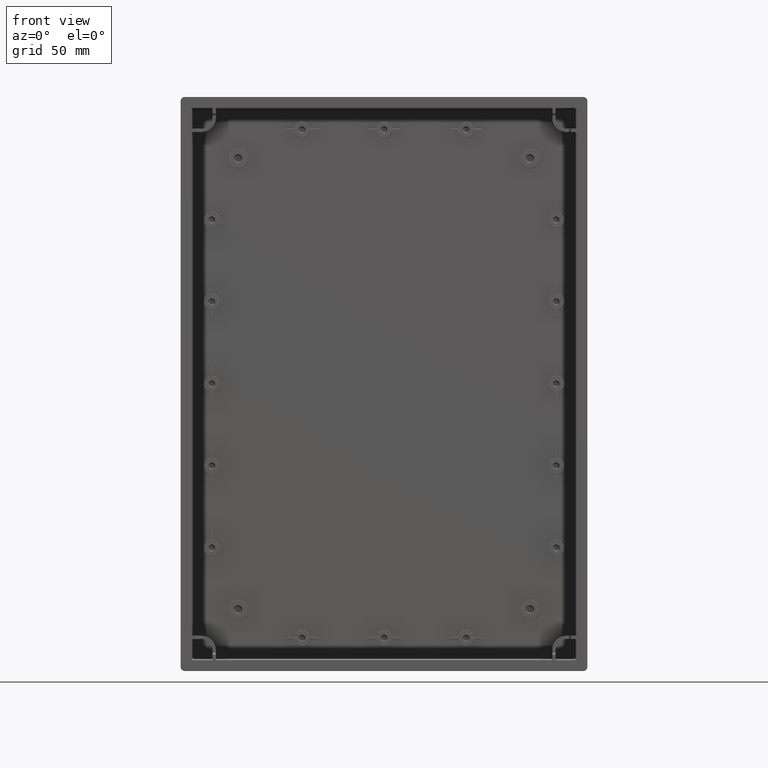
[diagram: clean part render]
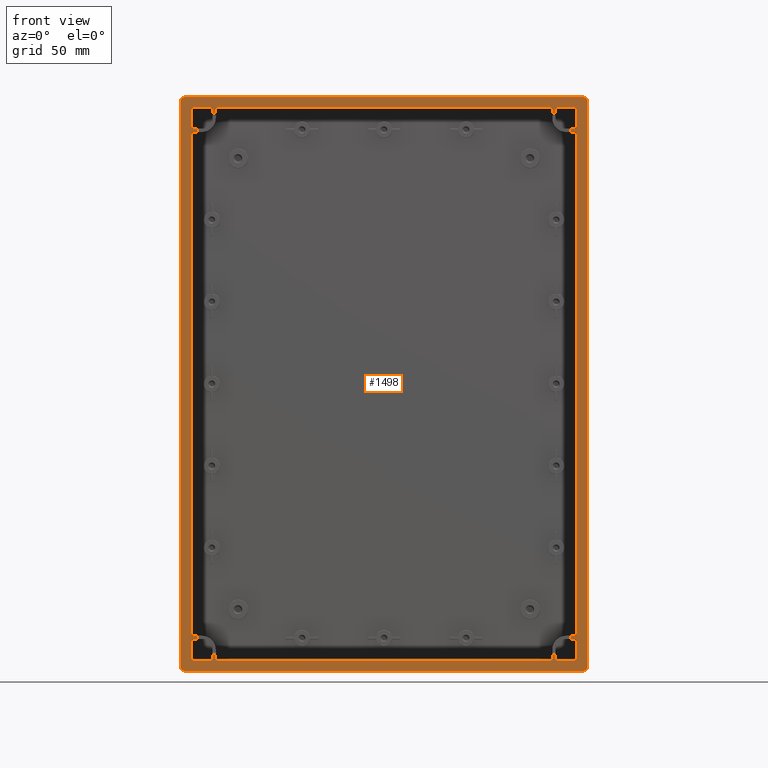
[diagram: same view with one face highlighted and labeled with its STEP entity id]
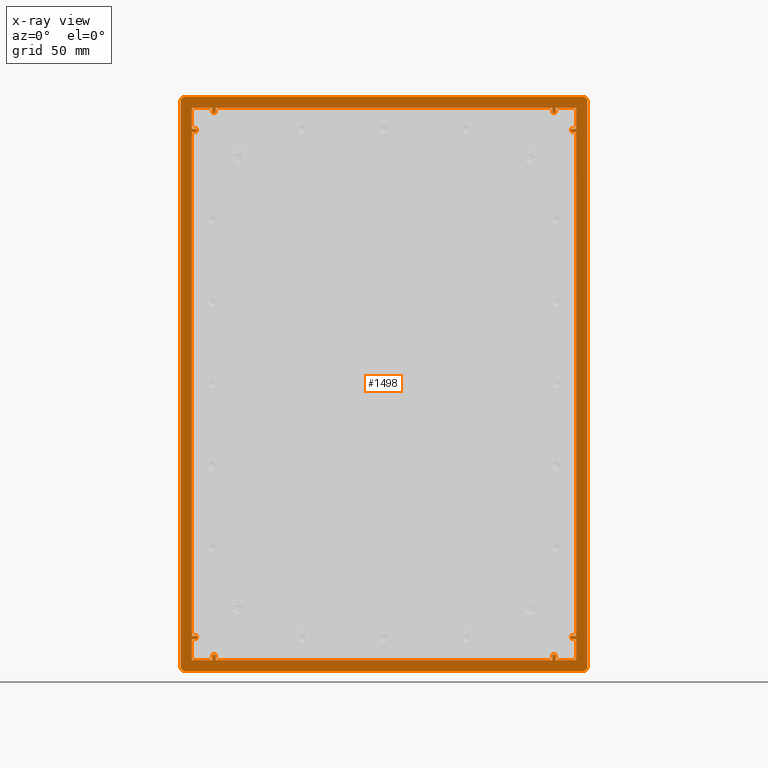
[diagram: x-ray of the same camera — body ghosted, the highlighted face saturated]
A machine part, front view. The second image highlights one B-rep face of the part: STEP entity #1498.
The next image is the same camera in x-ray: the body ghosted, the highlighted face saturated — about 0% of this face is hidden behind the body in this view.
In plain terms, the highlighted planar face has unit normal (-0, 1, 0).
Its self-contained STEP definition (entity closure, byte-faithful):
#1294 = EDGE_CURVE ( 'NONE', #5655, #5654, #6695, .T. ) ;
#1299 = EDGE_CURVE ( 'NONE', #5650, #5655, #6705, .T. ) ;
#1302 = EDGE_CURVE ( 'NONE', #5646, #5650, #6709, .T. ) ;
#1306 = EDGE_CURVE ( 'NONE', #5642, #5640, #6717, .T. ) ;
#1310 = EDGE_CURVE ( 'NONE', #5637, #5642, #6724, .T. ) ;
#1314 = EDGE_CURVE ( 'NONE', #5640, #5633, #6732, .T. ) ;
#1319 = EDGE_CURVE ( 'NONE', #5628, #5627, #6741, .T. ) ;
#1324 = EDGE_CURVE ( 'NONE', #5620, #5618, #6749, .T. ) ;
#1329 = EDGE_CURVE ( 'NONE', #5612, #5611, #6759, .T. ) ;
#1334 = EDGE_CURVE ( 'NONE', #5606, #5605, #6767, .T. ) ;
#1338 = EDGE_CURVE ( 'NONE', #5627, #5606, #6775, .T. ) ;
#1340 = EDGE_CURVE ( 'NONE', #5611, #5620, #6778, .T. ) ;
#1342 = EDGE_CURVE ( 'NONE', #5596, #5594, #6782, .T. ) ;
#1347 = EDGE_CURVE ( 'NONE', #5591, #5596, #6791, .T. ) ;
#1350 = EDGE_CURVE ( 'NONE', #5587, #5591, #6797, .T. ) ;
#1354 = EDGE_CURVE ( 'NONE', #5582, #5580, #6803, .T. ) ;
#1358 = EDGE_CURVE ( 'NONE', #5576, #5582, #6811, .T. ) ;
#1362 = EDGE_CURVE ( 'NONE', #5580, #5571, #6817, .T. ) ;
#1367 = EDGE_CURVE ( 'NONE', #5567, #5565, #6827, .T. ) ;
#1372 = EDGE_CURVE ( 'NONE', #5559, #5558, #6836, .T. ) ;
#1377 = EDGE_CURVE ( 'NONE', #5551, #5550, #6845, .T. ) ;
#1381 = EDGE_CURVE ( 'NONE', #5550, #5559, #6853, .T. ) ;
#1383 = EDGE_CURVE ( 'NONE', #5565, #5544, #6856, .T. ) ;
#1386 = EDGE_CURVE ( 'NONE', #5544, #5542, #6861, .T. ) ;
#1390 = EDGE_CURVE ( 'NONE', #5637, #5628, #6869, .T. ) ;
#1391 = EDGE_CURVE ( 'NONE', #5537, #5605, #6870, .T. ) ;
#1392 = EDGE_CURVE ( 'NONE', #5535, #5537, #18449, .T. ) ;
#1393 = EDGE_CURVE ( 'NONE', #5612, #5535, #6872, .T. ) ;
#1394 = EDGE_CURVE ( 'NONE', #5618, #5594, #6874, .T. ) ;
#1395 = EDGE_CURVE ( 'NONE', #5587, #5534, #6876, .T. ) ;
#1396 = EDGE_CURVE ( 'NONE', #5534, #5532, #18438, .T. ) ;
#1397 = EDGE_CURVE ( 'NONE', #5532, #5571, #6879, .T. ) ;
#1398 = EDGE_CURVE ( 'NONE', #5576, #5567, #6881, .T. ) ;
#1399 = EDGE_CURVE ( 'NONE', #5531, #5542, #6882, .T. ) ;
#1400 = EDGE_CURVE ( 'NONE', #5530, #5531, #18454, .T. ) ;
#1401 = EDGE_CURVE ( 'NONE', #5551, #5530, #6885, .T. ) ;
#1402 = EDGE_CURVE ( 'NONE', #5558, #5654, #6887, .T. ) ;
#1403 = EDGE_CURVE ( 'NONE', #5646, #5528, #6889, .T. ) ;
#1404 = EDGE_CURVE ( 'NONE', #5528, #5527, #18439, .T. ) ;
#1405 = EDGE_CURVE ( 'NONE', #5527, #5633, #6892, .T. ) ;
#1406 = EDGE_CURVE ( 'NONE', #5526, #5523, #6893, .T. ) ;
#1407 = EDGE_CURVE ( 'NONE', #5526, #5524, #18448, .T. ) ;
#1408 = EDGE_CURVE ( 'NONE', #5523, #5521, #18442, .T. ) ;
#1409 = EDGE_CURVE ( 'NONE', #5521, #5519, #6897, .T. ) ;
#1410 = EDGE_CURVE ( 'NONE', #5518, #5519, #18443, .T. ) ;
#1411 = EDGE_CURVE ( 'NONE', #5518, #5517, #6900, .T. ) ;
#1412 = EDGE_CURVE ( 'NONE', #5517, #5516, #18453, .T. ) ;
#1413 = EDGE_CURVE ( 'NONE', #5516, #5524, #6902, .T. ) ;
#1498 = ADVANCED_FACE ( 'NONE', ( #7038, #7040 ), #8974, .F. ) ;
#1738 = ORIENTED_EDGE ( 'NONE', *, *, #1294, .F. ) ;
#1739 = ORIENTED_EDGE ( 'NONE', *, *, #1302, .F. ) ;
#1740 = ORIENTED_EDGE ( 'NONE', *, *, #1402, .T. ) ;
#1741 = ORIENTED_EDGE ( 'NONE', *, *, #1386, .T. ) ;
#1742 = ORIENTED_EDGE ( 'NONE', *, *, #1400, .F. ) ;
#1743 = ORIENTED_EDGE ( 'NONE', *, *, #1398, .T. ) ;
#1744 = ORIENTED_EDGE ( 'NONE', *, *, #1367, .T. ) ;
#1745 = ORIENTED_EDGE ( 'NONE', *, *, #1372, .T. ) ;
#1746 = ORIENTED_EDGE ( 'NONE', *, *, #1377, .T. ) ;
#1747 = ORIENTED_EDGE ( 'NONE', *, *, #1381, .T. ) ;
#1763 = ORIENTED_EDGE ( 'NONE', *, *, #1350, .F. ) ;
#1764 = ORIENTED_EDGE ( 'NONE', *, *, #1383, .T. ) ;
#1765 = ORIENTED_EDGE ( 'NONE', *, *, #1347, .F. ) ;
#1766 = ORIENTED_EDGE ( 'NONE', *, *, #1362, .F. ) ;
#1767 = ORIENTED_EDGE ( 'NONE', *, *, #1404, .T. ) ;
#1770 = ORIENTED_EDGE ( 'NONE', *, *, #1392, .F. ) ;
#1772 = ORIENTED_EDGE ( 'NONE', *, *, #1393, .F. ) ;
#1776 = ORIENTED_EDGE ( 'NONE', *, *, #1306, .F. ) ;
#1779 = ORIENTED_EDGE ( 'NONE', *, *, #1403, .T. ) ;
#1780 = ORIENTED_EDGE ( 'NONE', *, *, #1399, .F. ) ;
#1781 = ORIENTED_EDGE ( 'NONE', *, *, #1401, .F. ) ;
#1782 = ORIENTED_EDGE ( 'NONE', *, *, #1358, .F. ) ;
#1784 = ORIENTED_EDGE ( 'NONE', *, *, #1329, .T. ) ;
#1785 = ORIENTED_EDGE ( 'NONE', *, *, #1390, .T. ) ;
#1790 = ORIENTED_EDGE ( 'NONE', *, *, #1405, .T. ) ;
#1791 = ORIENTED_EDGE ( 'NONE', *, *, #1342, .F. ) ;
#1792 = ORIENTED_EDGE ( 'NONE', *, *, #1354, .F. ) ;
#1793 = ORIENTED_EDGE ( 'NONE', *, *, #1338, .T. ) ;
#1796 = ORIENTED_EDGE ( 'NONE', *, *, #1310, .F. ) ;
#1800 = ORIENTED_EDGE ( 'NONE', *, *, #1299, .F. ) ;
#1801 = ORIENTED_EDGE ( 'NONE', *, *, #1412, .T. ) ;
#1802 = ORIENTED_EDGE ( 'NONE', *, *, #1314, .F. ) ;
#1803 = ORIENTED_EDGE ( 'NONE', *, *, #1406, .T. ) ;
#1804 = ORIENTED_EDGE ( 'NONE', *, *, #1391, .F. ) ;
#1805 = ORIENTED_EDGE ( 'NONE', *, *, #1334, .T. ) ;
#1834 = ORIENTED_EDGE ( 'NONE', *, *, #1407, .F. ) ;
#1836 = ORIENTED_EDGE ( 'NONE', *, *, #1410, .F. ) ;
#1841 = ORIENTED_EDGE ( 'NONE', *, *, #1409, .T. ) ;
#1842 = ORIENTED_EDGE ( 'NONE', *, *, #1411, .T. ) ;
#1843 = ORIENTED_EDGE ( 'NONE', *, *, #1408, .T. ) ;
#1848 = ORIENTED_EDGE ( 'NONE', *, *, #1395, .T. ) ;
#1849 = ORIENTED_EDGE ( 'NONE', *, *, #1396, .T. ) ;
#1850 = ORIENTED_EDGE ( 'NONE', *, *, #1397, .T. ) ;
#1853 = ORIENTED_EDGE ( 'NONE', *, *, #1394, .T. ) ;
#1854 = ORIENTED_EDGE ( 'NONE', *, *, #1340, .T. ) ;
#1856 = ORIENTED_EDGE ( 'NONE', *, *, #1319, .T. ) ;
#1857 = ORIENTED_EDGE ( 'NONE', *, *, #1324, .T. ) ;
#1868 = ORIENTED_EDGE ( 'NONE', *, *, #1413, .T. ) ;
#5458 = VECTOR ( 'NONE', #8099, 1000.000000000000000 ) ;
#5516 = VERTEX_POINT ( 'NONE', #17387 ) ;
#5517 = VERTEX_POINT ( 'NONE', #17388 ) ;
#5518 = VERTEX_POINT ( 'NONE', #17389 ) ;
#5519 = VERTEX_POINT ( 'NONE', #17390 ) ;
#5521 = VERTEX_POINT ( 'NONE', #17391 ) ;
#5523 = VERTEX_POINT ( 'NONE', #17392 ) ;
#5522 = VECTOR ( 'NONE', #8091, 1000.000000000000000 ) ;
#5524 = VERTEX_POINT ( 'NONE', #17393 ) ;
#5526 = VERTEX_POINT ( 'NONE', #17394 ) ;
#5527 = VERTEX_POINT ( 'NONE', #17395 ) ;
#5528 = VERTEX_POINT ( 'NONE', #17396 ) ;
#5530 = VERTEX_POINT ( 'NONE', #17397 ) ;
#5531 = VERTEX_POINT ( 'NONE', #17398 ) ;
#5532 = VERTEX_POINT ( 'NONE', #17399 ) ;
#5534 = VERTEX_POINT ( 'NONE', #17400 ) ;
#5535 = VERTEX_POINT ( 'NONE', #17401 ) ;
#5537 = VERTEX_POINT ( 'NONE', #17402 ) ;
#5542 = VERTEX_POINT ( 'NONE', #17405 ) ;
#5544 = VERTEX_POINT ( 'NONE', #17407 ) ;
#5550 = VERTEX_POINT ( 'NONE', #17411 ) ;
#5551 = VERTEX_POINT ( 'NONE', #17412 ) ;
#5558 = VERTEX_POINT ( 'NONE', #17416 ) ;
#5557 = VECTOR ( 'NONE', #8364, 1000.000000000000000 ) ;
#5559 = VERTEX_POINT ( 'NONE', #17417 ) ;
#5565 = VERTEX_POINT ( 'NONE', #17421 ) ;
#5566 = VECTOR ( 'NONE', #8356, 1000.000000000000000 ) ;
#5567 = VERTEX_POINT ( 'NONE', #17422 ) ;
#5571 = VERTEX_POINT ( 'NONE', #17425 ) ;
#5573 = VECTOR ( 'NONE', #8349, 1000.000000000000000 ) ;
#5576 = VERTEX_POINT ( 'NONE', #17428 ) ;
#5580 = VERTEX_POINT ( 'NONE', #17431 ) ;
#5582 = VERTEX_POINT ( 'NONE', #17433 ) ;
#5583 = VECTOR ( 'NONE', #8334, 1000.000000000000000 ) ;
#5587 = VERTEX_POINT ( 'NONE', #17436 ) ;
#5588 = VECTOR ( 'NONE', #8332, 1000.000000000000000 ) ;
#5591 = VERTEX_POINT ( 'NONE', #17438 ) ;
#5594 = VERTEX_POINT ( 'NONE', #17441 ) ;
#5596 = VERTEX_POINT ( 'NONE', #17442 ) ;
#5597 = VECTOR ( 'NONE', #8323, 1000.000000000000000 ) ;
#5602 = VECTOR ( 'NONE', #8321, 1000.000000000000000 ) ;
#5605 = VERTEX_POINT ( 'NONE', #17447 ) ;
#5606 = VERTEX_POINT ( 'NONE', #17448 ) ;
#5609 = VECTOR ( 'NONE', #8318, 1000.000000000000000 ) ;
#5611 = VERTEX_POINT ( 'NONE', #17452 ) ;
#5612 = VERTEX_POINT ( 'NONE', #17453 ) ;
#5618 = VERTEX_POINT ( 'NONE', #17457 ) ;
#5619 = VECTOR ( 'NONE', #8309, 1000.000000000000000 ) ;
#5620 = VERTEX_POINT ( 'NONE', #17458 ) ;
#5624 = VECTOR ( 'NONE', #8307, 1000.000000000000000 ) ;
#5627 = VERTEX_POINT ( 'NONE', #17462 ) ;
#5628 = VERTEX_POINT ( 'NONE', #17463 ) ;
#5629 = VECTOR ( 'NONE', #8304, 1000.000000000000000 ) ;
#5633 = VERTEX_POINT ( 'NONE', #17466 ) ;
#5637 = VERTEX_POINT ( 'NONE', #17469 ) ;
#5638 = VECTOR ( 'NONE', #8296, 1000.000000000000000 ) ;
#5640 = VERTEX_POINT ( 'NONE', #17471 ) ;
#5642 = VERTEX_POINT ( 'NONE', #17473 ) ;
#5643 = VECTOR ( 'NONE', #8293, 1000.000000000000000 ) ;
#5646 = VERTEX_POINT ( 'NONE', #17476 ) ;
#5647 = VECTOR ( 'NONE', #8290, 1000.000000000000000 ) ;
#5650 = VERTEX_POINT ( 'NONE', #17478 ) ;
#5652 = VECTOR ( 'NONE', #8085, 1000.000000000000000 ) ;
#5654 = VERTEX_POINT ( 'NONE', #17481 ) ;
#5655 = VERTEX_POINT ( 'NONE', #17482 ) ;
#5656 = VECTOR ( 'NONE', #8283, 1000.000000000000000 ) ;
#5661 = VECTOR ( 'NONE', #8280, 1000.000000000000000 ) ;
#5683 = VECTOR ( 'NONE', #8268, 1000.000000000000000 ) ;
#5697 = VECTOR ( 'NONE', #8260, 1000.000000000000000 ) ;
#5708 = VECTOR ( 'NONE', #8254, 1000.000000000000000 ) ;
#5729 = VECTOR ( 'NONE', #8243, 1000.000000000000000 ) ;
#5755 = VECTOR ( 'NONE', #8231, 1000.000000000000000 ) ;
#5781 = VECTOR ( 'NONE', #8221, 1000.000000000000000 ) ;
#5808 = VECTOR ( 'NONE', #8211, 1000.000000000000000 ) ;
#5826 = VECTOR ( 'NONE', #8203, 1000.000000000000000 ) ;
#5848 = VECTOR ( 'NONE', #8195, 1000.000000000000000 ) ;
#5867 = VECTOR ( 'NONE', #8187, 1000.000000000000000 ) ;
#5884 = VECTOR ( 'NONE', #8181, 1000.000000000000000 ) ;
#5909 = VECTOR ( 'NONE', #8171, 1000.000000000000000 ) ;
#5920 = VECTOR ( 'NONE', #8167, 1000.000000000000000 ) ;
#5930 = VECTOR ( 'NONE', #8163, 1000.000000000000000 ) ;
#5955 = VECTOR ( 'NONE', #8155, 1000.000000000000000 ) ;
#5990 = VECTOR ( 'NONE', #8145, 1000.000000000000000 ) ;
#6025 = VECTOR ( 'NONE', #8135, 1000.000000000000000 ) ;
#6056 = VECTOR ( 'NONE', #8075, 1000.000000000000000 ) ;
#6059 = VECTOR ( 'NONE', #8125, 1000.000000000000000 ) ;
#6064 = EDGE_LOOP ( 'NONE', ( #1785, #1856, #1793, #1805, #1804, #1770, #1772, #1784, #1854, #1857, #1853, #1791, #1765, #1763, #1848, #1849, #1850, #1766, #1792, #1782, #1743, #1744, #1764, #1741, #1780, #1742, #1781, #1746, #1747, #1745, #1740, #1738, #1800, #1739, #1779, #1767, #1790, #1802, #1776, #1796 ) ) ;
#6067 = EDGE_LOOP ( 'NONE', ( #1834, #1803, #1843, #1841, #1836, #1842, #1801, #1868 ) ) ;
#6090 = VECTOR ( 'NONE', #8115, 1000.000000000000000 ) ;
#6118 = VECTOR ( 'NONE', #8107, 1000.000000000000000 ) ;
#6695 = LINE ( 'NONE', #8074, #6056 ) ;
#6705 = LINE ( 'NONE', #8084, #5652 ) ;
#6709 = LINE ( 'NONE', #8090, #5522 ) ;
#6717 = LINE ( 'NONE', #8098, #5458 ) ;
#6724 = LINE ( 'NONE', #8106, #6118 ) ;
#6732 = LINE ( 'NONE', #8114, #6090 ) ;
#6741 = LINE ( 'NONE', #8124, #6059 ) ;
#6749 = LINE ( 'NONE', #8134, #6025 ) ;
#6759 = LINE ( 'NONE', #8144, #5990 ) ;
#6767 = LINE ( 'NONE', #8154, #5955 ) ;
#6775 = LINE ( 'NONE', #8162, #5930 ) ;
#6778 = LINE ( 'NONE', #8166, #5920 ) ;
#6782 = LINE ( 'NONE', #8170, #5909 ) ;
#6791 = LINE ( 'NONE', #8180, #5884 ) ;
#6797 = LINE ( 'NONE', #8186, #5867 ) ;
#6803 = LINE ( 'NONE', #8194, #5848 ) ;
#6811 = LINE ( 'NONE', #8202, #5826 ) ;
#6817 = LINE ( 'NONE', #8210, #5808 ) ;
#6827 = LINE ( 'NONE', #8220, #5781 ) ;
#6836 = LINE ( 'NONE', #8230, #5755 ) ;
#6845 = LINE ( 'NONE', #8242, #5729 ) ;
#6853 = LINE ( 'NONE', #8253, #5708 ) ;
#6856 = LINE ( 'NONE', #8259, #5697 ) ;
#6861 = LINE ( 'NONE', #8267, #5683 ) ;
#6869 = LINE ( 'NONE', #8278, #5661 ) ;
#6870 = LINE ( 'NONE', #8282, #5656 ) ;
#6872 = LINE ( 'NONE', #8289, #5647 ) ;
#6874 = LINE ( 'NONE', #8292, #5643 ) ;
#6876 = LINE ( 'NONE', #8295, #5638 ) ;
#6879 = LINE ( 'NONE', #8303, #5629 ) ;
#6881 = LINE ( 'NONE', #8305, #5624 ) ;
#6882 = LINE ( 'NONE', #8308, #5619 ) ;
#6885 = LINE ( 'NONE', #8317, #5609 ) ;
#6887 = LINE ( 'NONE', #8320, #5602 ) ;
#6889 = LINE ( 'NONE', #8322, #5597 ) ;
#6892 = LINE ( 'NONE', #8331, #5588 ) ;
#6893 = LINE ( 'NONE', #8333, #5583 ) ;
#6897 = LINE ( 'NONE', #8348, #5573 ) ;
#6900 = LINE ( 'NONE', #8355, #5566 ) ;
#6902 = LINE ( 'NONE', #8363, #5557 ) ;
#7038 = FACE_BOUND ( 'NONE', #6064, .T. ) ;
#7040 = FACE_OUTER_BOUND ( 'NONE', #6067, .T. ) ;
#8074 = CARTESIAN_POINT ( 'NONE',  ( 117.3998857648000000, 0.0000000000000000000, -153.5743235324999900 ) ) ;
#8075 = DIRECTION ( 'NONE',  ( 1.000000000000000000, 0.0000000000000000000, -0.0000000000000000000 ) ) ;
#8084 = CARTESIAN_POINT ( 'NONE',  ( 114.0082981287155900, 0.0000000000000000000, -154.5743235324999900 ) ) ;
#8085 = DIRECTION ( 'NONE',  ( 0.0000000000000000000, 0.0000000000000000000, 1.000000000000000000 ) ) ;
#8090 = CARTESIAN_POINT ( 'NONE',  ( 104.5743235325000000, 0.0000000000000000000, -155.5743235324999900 ) ) ;
#8091 = DIRECTION ( 'NONE',  ( -1.000000000000000000, 0.0000000000000000000, 0.0000000000000000000 ) ) ;
#8098 = CARTESIAN_POINT ( 'NONE',  ( 103.5743235325000000, 0.0000000000000000000, -165.0082981287155800 ) ) ;
#8099 = DIRECTION ( 'NONE',  ( 1.000000000000000000, 0.0000000000000000000, 0.0000000000000000000 ) ) ;
#8106 = CARTESIAN_POINT ( 'NONE',  ( 102.5743235325000200, 0.0000000000000000000, -153.5743235324999900 ) ) ;
#8107 = DIRECTION ( 'NONE',  ( 0.0000000000000000000, 0.0000000000000000000, 1.000000000000000000 ) ) ;
#8114 = CARTESIAN_POINT ( 'NONE',  ( 104.5743235325000000, 0.0000000000000000000, -168.3998857647999900 ) ) ;
#8115 = DIRECTION ( 'NONE',  ( 0.0000000000000000000, 0.0000000000000000000, -1.000000000000000000 ) ) ;
#8124 = CARTESIAN_POINT ( 'NONE',  ( -102.5743235325000200, 0.0000000000000000000, -153.5743235324999900 ) ) ;
#8125 = DIRECTION ( 'NONE',  ( 0.0000000000000000000, 0.0000000000000000000, 1.000000000000000000 ) ) ;
#8134 = CARTESIAN_POINT ( 'NONE',  ( -117.3998857648000000, 0.0000000000000000000, -153.5743235324999900 ) ) ;
#8135 = DIRECTION ( 'NONE',  ( -1.000000000000000000, 0.0000000000000000000, 0.0000000000000000000 ) ) ;
#8144 = CARTESIAN_POINT ( 'NONE',  ( -104.5743235325000000, 0.0000000000000000000, -155.5743235324999900 ) ) ;
#8145 = DIRECTION ( 'NONE',  ( 1.000000000000000000, 0.0000000000000000000, -0.0000000000000000000 ) ) ;
#8154 = CARTESIAN_POINT ( 'NONE',  ( -104.5743235325000000, 0.0000000000000000000, -168.3998857647999900 ) ) ;
#8155 = DIRECTION ( 'NONE',  ( 0.0000000000000000000, 0.0000000000000000000, -1.000000000000000000 ) ) ;
#8162 = CARTESIAN_POINT ( 'NONE',  ( -103.5743235325000000, 0.0000000000000000000, -165.0082981287155800 ) ) ;
#8163 = DIRECTION ( 'NONE',  ( -1.000000000000000000, 0.0000000000000000000, 0.0000000000000000000 ) ) ;
#8166 = CARTESIAN_POINT ( 'NONE',  ( -114.0082981287155900, 0.0000000000000000000, -154.5743235324999900 ) ) ;
#8167 = DIRECTION ( 'NONE',  ( 0.0000000000000000000, 0.0000000000000000000, 1.000000000000000000 ) ) ;
#8170 = CARTESIAN_POINT ( 'NONE',  ( -117.3998857648000000, 0.0000000000000000000, 153.5743235324999900 ) ) ;
#8171 = DIRECTION ( 'NONE',  ( -1.000000000000000000, 0.0000000000000000000, 0.0000000000000000000 ) ) ;
#8180 = CARTESIAN_POINT ( 'NONE',  ( -114.0082981287155900, 0.0000000000000000000, 154.5743235324999900 ) ) ;
#8181 = DIRECTION ( 'NONE',  ( 0.0000000000000000000, 0.0000000000000000000, -1.000000000000000000 ) ) ;
#8186 = CARTESIAN_POINT ( 'NONE',  ( -104.5743235325000000, 0.0000000000000000000, 155.5743235324999900 ) ) ;
#8187 = DIRECTION ( 'NONE',  ( 1.000000000000000000, 0.0000000000000000000, -0.0000000000000000000 ) ) ;
#8194 = CARTESIAN_POINT ( 'NONE',  ( -103.5743235325000000, 0.0000000000000000000, 165.0082981287155800 ) ) ;
#8195 = DIRECTION ( 'NONE',  ( -1.000000000000000000, 0.0000000000000000000, 0.0000000000000000000 ) ) ;
#8202 = CARTESIAN_POINT ( 'NONE',  ( -102.5743235325000200, 0.0000000000000000000, 153.5743235324999900 ) ) ;
#8203 = DIRECTION ( 'NONE',  ( 0.0000000000000000000, 0.0000000000000000000, -1.000000000000000000 ) ) ;
#8210 = CARTESIAN_POINT ( 'NONE',  ( -104.5743235325000000, 0.0000000000000000000, 168.3998857647999900 ) ) ;
#8211 = DIRECTION ( 'NONE',  ( 0.0000000000000000000, 0.0000000000000000000, 1.000000000000000000 ) ) ;
#8220 = CARTESIAN_POINT ( 'NONE',  ( 102.5743235325000200, 0.0000000000000000000, 153.5743235324999900 ) ) ;
#8221 = DIRECTION ( 'NONE',  ( 0.0000000000000000000, 0.0000000000000000000, -1.000000000000000000 ) ) ;
#8230 = CARTESIAN_POINT ( 'NONE',  ( 117.3998857648000000, 0.0000000000000000000, 153.5743235324999900 ) ) ;
#8231 = DIRECTION ( 'NONE',  ( 1.000000000000000000, 0.0000000000000000000, -0.0000000000000000000 ) ) ;
#8242 = CARTESIAN_POINT ( 'NONE',  ( 104.5743235325000000, 0.0000000000000000000, 155.5743235324999900 ) ) ;
#8243 = DIRECTION ( 'NONE',  ( -1.000000000000000000, 0.0000000000000000000, 0.0000000000000000000 ) ) ;
#8253 = CARTESIAN_POINT ( 'NONE',  ( 114.0082981287155900, 0.0000000000000000000, 154.5743235324999900 ) ) ;
#8254 = DIRECTION ( 'NONE',  ( 0.0000000000000000000, 0.0000000000000000000, -1.000000000000000000 ) ) ;
#8259 = CARTESIAN_POINT ( 'NONE',  ( 103.5743235325000000, 0.0000000000000000000, 165.0082981287155800 ) ) ;
#8260 = DIRECTION ( 'NONE',  ( 1.000000000000000000, 0.0000000000000000000, -0.0000000000000000000 ) ) ;
#8267 = CARTESIAN_POINT ( 'NONE',  ( 104.5743235325000000, 0.0000000000000000000, 168.3998857647999900 ) ) ;
#8268 = DIRECTION ( 'NONE',  ( 0.0000000000000000000, 0.0000000000000000000, 1.000000000000000000 ) ) ;
#8278 = CARTESIAN_POINT ( 'NONE',  ( 102.5743235325000200, 0.0000000000000000000, -168.3998857647999900 ) ) ;
#8280 = DIRECTION ( 'NONE',  ( -1.000000000000000000, 0.0000000000000000000, 0.0000000000000000000 ) ) ;
#8282 = CARTESIAN_POINT ( 'NONE',  ( -116.3999238418000000, -1.894780628693999900E-014, -168.3998857647999900 ) ) ;
#8283 = DIRECTION ( 'NONE',  ( 1.000000000000000000, 0.0000000000000000000, 0.0000000000000000000 ) ) ;
#8284 = CARTESIAN_POINT ( 'NONE',  ( -117.3998857648070400, 0.0000000000000000000, -167.3999238417747200 ) ) ;
#8285 = CARTESIAN_POINT ( 'NONE',  ( -117.3998857647694600, 0.0000000000000000000, -167.9856972125168400 ) ) ;
#8286 = CARTESIAN_POINT ( 'NONE',  ( -116.9856972125076300, 0.0000000000000000000, -168.3998857647747800 ) ) ;
#8288 = CARTESIAN_POINT ( 'NONE',  ( -116.3999238417655100, -9.473903143469999300E-015, -168.3998857647974900 ) ) ;
#8289 = CARTESIAN_POINT ( 'NONE',  ( -117.3998857648000000, 0.0000000000000000000, -155.5743235324999900 ) ) ;
#8290 = DIRECTION ( 'NONE',  ( 0.0000000000000000000, 0.0000000000000000000, -1.000000000000000000 ) ) ;
#8292 = CARTESIAN_POINT ( 'NONE',  ( -117.3998857648000000, 0.0000000000000000000, -153.5743235324999900 ) ) ;
#8293 = DIRECTION ( 'NONE',  ( 0.0000000000000000000, 0.0000000000000000000, 1.000000000000000000 ) ) ;
#8295 = CARTESIAN_POINT ( 'NONE',  ( -117.3998857648000000, 0.0000000000000000000, 155.5743235324999900 ) ) ;
#8296 = DIRECTION ( 'NONE',  ( 0.0000000000000000000, 0.0000000000000000000, 1.000000000000000000 ) ) ;
#8298 = CARTESIAN_POINT ( 'NONE',  ( -117.3998857648070400, 0.0000000000000000000, 167.3999238417747200 ) ) ;
#8299 = CARTESIAN_POINT ( 'NONE',  ( -117.3998857647694600, 0.0000000000000000000, 167.9856972125168400 ) ) ;
#8300 = CARTESIAN_POINT ( 'NONE',  ( -116.9856972125076300, 0.0000000000000000000, 168.3998857647747800 ) ) ;
#8301 = CARTESIAN_POINT ( 'NONE',  ( -116.3999238417655100, 0.0000000000000000000, 168.3998857647974900 ) ) ;
#8303 = CARTESIAN_POINT ( 'NONE',  ( -116.3999238418000000, 0.0000000000000000000, 168.3998857647999900 ) ) ;
#8304 = DIRECTION ( 'NONE',  ( 1.000000000000000000, 0.0000000000000000000, 0.0000000000000000000 ) ) ;
#8305 = CARTESIAN_POINT ( 'NONE',  ( -102.5743235325000200, 0.0000000000000000000, 168.3998857647999900 ) ) ;
#8307 = DIRECTION ( 'NONE',  ( 1.000000000000000000, 0.0000000000000000000, 0.0000000000000000000 ) ) ;
#8308 = CARTESIAN_POINT ( 'NONE',  ( 116.3999238418000000, -1.894780628693999900E-014, 168.3998857647999900 ) ) ;
#8309 = DIRECTION ( 'NONE',  ( -1.000000000000000000, 0.0000000000000000000, 0.0000000000000000000 ) ) ;
#8310 = CARTESIAN_POINT ( 'NONE',  ( 117.3998857648070400, 0.0000000000000000000, 167.3999238417747200 ) ) ;
#8311 = CARTESIAN_POINT ( 'NONE',  ( 117.3998857647694600, 0.0000000000000000000, 167.9856972125168400 ) ) ;
#8313 = CARTESIAN_POINT ( 'NONE',  ( 116.9856972125076300, 0.0000000000000000000, 168.3998857647747800 ) ) ;
#8314 = CARTESIAN_POINT ( 'NONE',  ( 116.3999238417655100, -9.473903143469999300E-015, 168.3998857647974900 ) ) ;
#8317 = CARTESIAN_POINT ( 'NONE',  ( 117.3998857648000000, 0.0000000000000000000, 155.5743235324999900 ) ) ;
#8318 = DIRECTION ( 'NONE',  ( 0.0000000000000000000, 0.0000000000000000000, 1.000000000000000000 ) ) ;
#8320 = CARTESIAN_POINT ( 'NONE',  ( 117.3998857648000000, 0.0000000000000000000, 153.5743235324999900 ) ) ;
#8321 = DIRECTION ( 'NONE',  ( 0.0000000000000000000, 0.0000000000000000000, -1.000000000000000000 ) ) ;
#8322 = CARTESIAN_POINT ( 'NONE',  ( 117.3998857648000000, 0.0000000000000000000, -155.5743235324999900 ) ) ;
#8323 = DIRECTION ( 'NONE',  ( 0.0000000000000000000, 0.0000000000000000000, -1.000000000000000000 ) ) ;
#8325 = CARTESIAN_POINT ( 'NONE',  ( 117.3998857648070400, 0.0000000000000000000, -167.3999238417747200 ) ) ;
#8326 = CARTESIAN_POINT ( 'NONE',  ( 117.3998857647694600, 0.0000000000000000000, -167.9856972125168400 ) ) ;
#8328 = CARTESIAN_POINT ( 'NONE',  ( 116.9856972125076300, 0.0000000000000000000, -168.3998857647747800 ) ) ;
#8329 = CARTESIAN_POINT ( 'NONE',  ( 116.3999238417655100, -9.473903143469999300E-015, -168.3998857647974900 ) ) ;
#8331 = CARTESIAN_POINT ( 'NONE',  ( 116.3999238418000000, -1.894780628693999900E-014, -168.3998857647999900 ) ) ;
#8332 = DIRECTION ( 'NONE',  ( -1.000000000000000000, 0.0000000000000000000, 0.0000000000000000000 ) ) ;
#8333 = CARTESIAN_POINT ( 'NONE',  ( 121.5003807620999900, 1.907845811931000100E-014, 175.0000000000000300 ) ) ;
#8334 = DIRECTION ( 'NONE',  ( -1.000000000000000000, 0.0000000000000000000, 0.0000000000000000000 ) ) ;
#8336 = CARTESIAN_POINT ( 'NONE',  ( 121.5003807621190800, 0.0000000000000000000, 175.0000000000145800 ) ) ;
#8337 = CARTESIAN_POINT ( 'NONE',  ( 122.9647161629437400, 0.0000000000000000000, 175.0000000000670500 ) ) ;
#8338 = CARTESIAN_POINT ( 'NONE',  ( 124.0000000000670600, 0.0000000000000000000, 173.9647161629437700 ) ) ;
#8339 = CARTESIAN_POINT ( 'NONE',  ( 124.0000000000145700, 0.0000000000000000000, 172.5003807621191100 ) ) ;
#8342 = CARTESIAN_POINT ( 'NONE',  ( -121.5003807621190800, 0.0000000000000000000, 175.0000000000145800 ) ) ;
#8343 = CARTESIAN_POINT ( 'NONE',  ( -122.9647161629437400, 0.0000000000000000000, 175.0000000000670500 ) ) ;
#8344 = CARTESIAN_POINT ( 'NONE',  ( -124.0000000000670600, 0.0000000000000000000, 173.9647161629437700 ) ) ;
#8345 = CARTESIAN_POINT ( 'NONE',  ( -124.0000000000145700, 0.0000000000000000000, 172.5003807621191100 ) ) ;
#8348 = CARTESIAN_POINT ( 'NONE',  ( -124.0000000000000000, 0.0000000000000000000, 172.5003807621000100 ) ) ;
#8349 = DIRECTION ( 'NONE',  ( 0.0000000000000000000, 0.0000000000000000000, -1.000000000000000000 ) ) ;
#8350 = CARTESIAN_POINT ( 'NONE',  ( -121.5003807621190800, 0.0000000000000000000, -175.0000000000145800 ) ) ;
#8351 = CARTESIAN_POINT ( 'NONE',  ( -122.9647161629437400, 0.0000000000000000000, -175.0000000000670500 ) ) ;
#8352 = CARTESIAN_POINT ( 'NONE',  ( -124.0000000000670600, 0.0000000000000000000, -173.9647161629437700 ) ) ;
#8353 = CARTESIAN_POINT ( 'NONE',  ( -124.0000000000145700, 0.0000000000000000000, -172.5003807621191100 ) ) ;
#8355 = CARTESIAN_POINT ( 'NONE',  ( -121.5003807620999900, 1.894780604755000000E-014, -175.0000000000000300 ) ) ;
#8356 = DIRECTION ( 'NONE',  ( 1.000000000000000000, 0.0000000000000000000, 0.0000000000000000000 ) ) ;
#8357 = CARTESIAN_POINT ( 'NONE',  ( 121.5003807621190800, 0.0000000000000000000, -175.0000000000145800 ) ) ;
#8358 = CARTESIAN_POINT ( 'NONE',  ( 122.9647161629437400, 0.0000000000000000000, -175.0000000000670500 ) ) ;
#8359 = CARTESIAN_POINT ( 'NONE',  ( 124.0000000000670600, 0.0000000000000000000, -173.9647161629437700 ) ) ;
#8360 = CARTESIAN_POINT ( 'NONE',  ( 124.0000000000145700, 0.0000000000000000000, -172.5003807621191100 ) ) ;
#8363 = CARTESIAN_POINT ( 'NONE',  ( 124.0000000000000000, 1.894780313094000100E-014, -172.5003807621000100 ) ) ;
#8364 = DIRECTION ( 'NONE',  ( 0.0000000000000000000, 0.0000000000000000000, 1.000000000000000000 ) ) ;
#8974 = PLANE ( 'NONE',  #18264 ) ;
#8975 = CARTESIAN_POINT ( 'NONE',  ( 0.0000000000000000000, 0.0000000000000000000, 0.0000000000000000000 ) ) ;
#8976 = DIRECTION ( 'NONE',  ( -0.0000000000000000000, 1.000000000000000000, 0.0000000000000000000 ) ) ;
#8977 = DIRECTION ( 'NONE',  ( 1.000000000000000000, 0.0000000000000000000, 0.0000000000000000000 ) ) ;
#17387 = CARTESIAN_POINT ( 'NONE',  ( 124.0000000000145700, 0.0000000000000000000, -172.5003807621191100 ) ) ;
#17388 = CARTESIAN_POINT ( 'NONE',  ( 121.5003807621190800, 0.0000000000000000000, -175.0000000000145800 ) ) ;
#17389 = CARTESIAN_POINT ( 'NONE',  ( -121.5003807621190800, 0.0000000000000000000, -175.0000000000145800 ) ) ;
#17390 = CARTESIAN_POINT ( 'NONE',  ( -124.0000000000145700, 0.0000000000000000000, -172.5003807621191100 ) ) ;
#17391 = CARTESIAN_POINT ( 'NONE',  ( -124.0000000000145700, 0.0000000000000000000, 172.5003807621191100 ) ) ;
#17392 = CARTESIAN_POINT ( 'NONE',  ( -121.5003807621190800, 0.0000000000000000000, 175.0000000000145800 ) ) ;
#17393 = CARTESIAN_POINT ( 'NONE',  ( 124.0000000000145700, 0.0000000000000000000, 172.5003807621191100 ) ) ;
#17394 = CARTESIAN_POINT ( 'NONE',  ( 121.5003807621190800, 0.0000000000000000000, 175.0000000000145800 ) ) ;
#17395 = CARTESIAN_POINT ( 'NONE',  ( 116.3999238417655100, -9.473903143469999300E-015, -168.3998857647974900 ) ) ;
#17396 = CARTESIAN_POINT ( 'NONE',  ( 117.3998857648070400, 0.0000000000000000000, -167.3999238417747200 ) ) ;
#17397 = CARTESIAN_POINT ( 'NONE',  ( 117.3998857648070400, 0.0000000000000000000, 167.3999238417747200 ) ) ;
#17398 = CARTESIAN_POINT ( 'NONE',  ( 116.3999238417655100, -9.473903143469999300E-015, 168.3998857647974900 ) ) ;
#17399 = CARTESIAN_POINT ( 'NONE',  ( -116.3999238417655100, 0.0000000000000000000, 168.3998857647974900 ) ) ;
#17400 = CARTESIAN_POINT ( 'NONE',  ( -117.3998857648070400, 0.0000000000000000000, 167.3999238417747200 ) ) ;
#17401 = CARTESIAN_POINT ( 'NONE',  ( -117.3998857648070400, 0.0000000000000000000, -167.3999238417747200 ) ) ;
#17402 = CARTESIAN_POINT ( 'NONE',  ( -116.3999238417655100, -9.473903143469999300E-015, -168.3998857647974900 ) ) ;
#17405 = CARTESIAN_POINT ( 'NONE',  ( 104.5743235325000000, 0.0000000000000000000, 168.3998857647999900 ) ) ;
#17407 = CARTESIAN_POINT ( 'NONE',  ( 104.5743235325000000, 0.0000000000000000000, 165.0082981287157500 ) ) ;
#17411 = CARTESIAN_POINT ( 'NONE',  ( 114.0082981287155500, -2.667137344314340900E-014, 155.5743235324999900 ) ) ;
#17412 = CARTESIAN_POINT ( 'NONE',  ( 117.3998857648337100, 0.0000000000000000000, 155.5743235324999900 ) ) ;
#17416 = CARTESIAN_POINT ( 'NONE',  ( 117.3998857648337100, 0.0000000000000000000, 153.5743235324999300 ) ) ;
#17417 = CARTESIAN_POINT ( 'NONE',  ( 114.0082981287157500, 0.0000000000000000000, 153.5743235324999900 ) ) ;
#17421 = CARTESIAN_POINT ( 'NONE',  ( 102.5743235325000200, 0.0000000000000000000, 165.0082981287155800 ) ) ;
#17422 = CARTESIAN_POINT ( 'NONE',  ( 102.5743235325000200, 0.0000000000000000000, 168.3998857648187500 ) ) ;
#17425 = CARTESIAN_POINT ( 'NONE',  ( -104.5743235325000500, 0.0000000000000000000, 168.3998857648187500 ) ) ;
#17428 = CARTESIAN_POINT ( 'NONE',  ( -102.5743235325000200, 0.0000000000000000000, 168.3998857647999900 ) ) ;
#17431 = CARTESIAN_POINT ( 'NONE',  ( -104.5743235325000000, 0.0000000000000000000, 165.0082981287157500 ) ) ;
#17433 = CARTESIAN_POINT ( 'NONE',  ( -102.5743235325000200, 0.0000000000000000000, 165.0082981287155800 ) ) ;
#17436 = CARTESIAN_POINT ( 'NONE',  ( -117.3998857648000000, 0.0000000000000000000, 155.5743235324999900 ) ) ;
#17438 = CARTESIAN_POINT ( 'NONE',  ( -114.0082981287155900, 0.0000000000000000000, 155.5743235324999900 ) ) ;
#17441 = CARTESIAN_POINT ( 'NONE',  ( -117.3998857648337100, 0.0000000000000000000, 153.5743235324999300 ) ) ;
#17442 = CARTESIAN_POINT ( 'NONE',  ( -114.0082981287157500, 0.0000000000000000000, 153.5743235324999900 ) ) ;
#17447 = CARTESIAN_POINT ( 'NONE',  ( -104.5743235325000000, 0.0000000000000000000, -168.3998857647999900 ) ) ;
#17448 = CARTESIAN_POINT ( 'NONE',  ( -104.5743235325000000, 0.0000000000000000000, -165.0082981287157500 ) ) ;
#17452 = CARTESIAN_POINT ( 'NONE',  ( -114.0082981287155400, -1.084202172485504400E-016, -155.5743235324999900 ) ) ;
#17453 = CARTESIAN_POINT ( 'NONE',  ( -117.3998857648337100, 0.0000000000000000000, -155.5743235324999900 ) ) ;
#17457 = CARTESIAN_POINT ( 'NONE',  ( -117.3998857648000000, 0.0000000000000000000, -153.5743235324999900 ) ) ;
#17458 = CARTESIAN_POINT ( 'NONE',  ( -114.0082981287155900, 0.0000000000000000000, -153.5743235324999900 ) ) ;
#17462 = CARTESIAN_POINT ( 'NONE',  ( -102.5743235325000200, 0.0000000000000000000, -165.0082981287155800 ) ) ;
#17463 = CARTESIAN_POINT ( 'NONE',  ( -102.5743235325000500, 0.0000000000000000000, -168.3998857648187500 ) ) ;
#17466 = CARTESIAN_POINT ( 'NONE',  ( 104.5743235325000500, 0.0000000000000000000, -168.3998857648187500 ) ) ;
#17469 = CARTESIAN_POINT ( 'NONE',  ( 102.5743235325000200, 0.0000000000000000000, -168.3998857647999900 ) ) ;
#17471 = CARTESIAN_POINT ( 'NONE',  ( 104.5743235325000000, 0.0000000000000000000, -165.0082981287157500 ) ) ;
#17473 = CARTESIAN_POINT ( 'NONE',  ( 102.5743235325000200, 0.0000000000000000000, -165.0082981287155800 ) ) ;
#17476 = CARTESIAN_POINT ( 'NONE',  ( 117.3998857648000000, 0.0000000000000000000, -155.5743235324999900 ) ) ;
#17478 = CARTESIAN_POINT ( 'NONE',  ( 114.0082981287155900, 0.0000000000000000000, -155.5743235324999900 ) ) ;
#17481 = CARTESIAN_POINT ( 'NONE',  ( 117.3998857648337100, 0.0000000000000000000, -153.5743235324999300 ) ) ;
#17482 = CARTESIAN_POINT ( 'NONE',  ( 114.0082981287157500, 0.0000000000000000000, -153.5743235324999900 ) ) ;
#18264 = AXIS2_PLACEMENT_3D ( 'NONE', #8975, #8976, #8977 ) ;
#18438 =( BOUNDED_CURVE ( )  B_SPLINE_CURVE ( 3, ( #8298, #8299, #8300, #8301 ),
 .UNSPECIFIED., .F., .T. ) 
 B_SPLINE_CURVE_WITH_KNOTS ( ( 4, 4 ),
 ( 5.497825220037108300, 7.068545394331670700 ),
 .UNSPECIFIED. ) 
 CURVE ( )  GEOMETRIC_REPRESENTATION_ITEM ( )  RATIONAL_B_SPLINE_CURVE ( ( 1.000000000000000000, 0.8047558030991028800, 0.8047558030991028800, 1.000000000000000000 ) ) 
 REPRESENTATION_ITEM ( '' )  );
#18439 =( BOUNDED_CURVE ( )  B_SPLINE_CURVE ( 3, ( #8325, #8326, #8328, #8329 ),
 .UNSPECIFIED., .F., .T. ) 
 B_SPLINE_CURVE_WITH_KNOTS ( ( 4, 4 ),
 ( 5.497825220037108300, 7.068545394331670700 ),
 .UNSPECIFIED. ) 
 CURVE ( )  GEOMETRIC_REPRESENTATION_ITEM ( )  RATIONAL_B_SPLINE_CURVE ( ( 1.000000000000000000, 0.8047558030991028800, 0.8047558030991028800, 1.000000000000000000 ) ) 
 REPRESENTATION_ITEM ( '' )  );
#18442 =( BOUNDED_CURVE ( )  B_SPLINE_CURVE ( 3, ( #8342, #8343, #8344, #8345 ),
 .UNSPECIFIED., .F., .T. ) 
 B_SPLINE_CURVE_WITH_KNOTS ( ( 4, 4 ),
 ( 5.497939437015342700, 7.068431177343818200 ),
 .UNSPECIFIED. ) 
 CURVE ( )  GEOMETRIC_REPRESENTATION_ITEM ( )  RATIONAL_B_SPLINE_CURVE ( ( 1.000000000000000000, 0.8048096403760123300, 0.8048096403760123300, 1.000000000000000000 ) ) 
 REPRESENTATION_ITEM ( '' )  );
#18443 =( BOUNDED_CURVE ( )  B_SPLINE_CURVE ( 3, ( #8350, #8351, #8352, #8353 ),
 .UNSPECIFIED., .F., .T. ) 
 B_SPLINE_CURVE_WITH_KNOTS ( ( 4, 4 ),
 ( 2.356346783425549600, 3.926838523754025500 ),
 .UNSPECIFIED. ) 
 CURVE ( )  GEOMETRIC_REPRESENTATION_ITEM ( )  RATIONAL_B_SPLINE_CURVE ( ( 1.000000000000000000, 0.8048096403760123300, 0.8048096403760123300, 1.000000000000000000 ) ) 
 REPRESENTATION_ITEM ( '' )  );
#18448 =( BOUNDED_CURVE ( )  B_SPLINE_CURVE ( 3, ( #8336, #8337, #8338, #8339 ),
 .UNSPECIFIED., .F., .T. ) 
 B_SPLINE_CURVE_WITH_KNOTS ( ( 4, 4 ),
 ( 2.356346783425549600, 3.926838523754025500 ),
 .UNSPECIFIED. ) 
 CURVE ( )  GEOMETRIC_REPRESENTATION_ITEM ( )  RATIONAL_B_SPLINE_CURVE ( ( 1.000000000000000000, 0.8048096403760123300, 0.8048096403760123300, 1.000000000000000000 ) ) 
 REPRESENTATION_ITEM ( '' )  );
#18449 =( BOUNDED_CURVE ( )  B_SPLINE_CURVE ( 3, ( #8284, #8285, #8286, #8288 ),
 .UNSPECIFIED., .F., .T. ) 
 B_SPLINE_CURVE_WITH_KNOTS ( ( 4, 4 ),
 ( 2.356232566447315200, 3.926952740741877600 ),
 .UNSPECIFIED. ) 
 CURVE ( )  GEOMETRIC_REPRESENTATION_ITEM ( )  RATIONAL_B_SPLINE_CURVE ( ( 1.000000000000000000, 0.8047558030991028800, 0.8047558030991028800, 1.000000000000000000 ) ) 
 REPRESENTATION_ITEM ( '' )  );
#18453 =( BOUNDED_CURVE ( )  B_SPLINE_CURVE ( 3, ( #8357, #8358, #8359, #8360 ),
 .UNSPECIFIED., .F., .T. ) 
 B_SPLINE_CURVE_WITH_KNOTS ( ( 4, 4 ),
 ( 5.497939437015342700, 7.068431177343818200 ),
 .UNSPECIFIED. ) 
 CURVE ( )  GEOMETRIC_REPRESENTATION_ITEM ( )  RATIONAL_B_SPLINE_CURVE ( ( 1.000000000000000000, 0.8048096403760123300, 0.8048096403760123300, 1.000000000000000000 ) ) 
 REPRESENTATION_ITEM ( '' )  );
#18454 =( BOUNDED_CURVE ( )  B_SPLINE_CURVE ( 3, ( #8310, #8311, #8313, #8314 ),
 .UNSPECIFIED., .F., .T. ) 
 B_SPLINE_CURVE_WITH_KNOTS ( ( 4, 4 ),
 ( 2.356232566447315200, 3.926952740741877600 ),
 .UNSPECIFIED. ) 
 CURVE ( )  GEOMETRIC_REPRESENTATION_ITEM ( )  RATIONAL_B_SPLINE_CURVE ( ( 1.000000000000000000, 0.8047558030991028800, 0.8047558030991028800, 1.000000000000000000 ) ) 
 REPRESENTATION_ITEM ( '' )  );